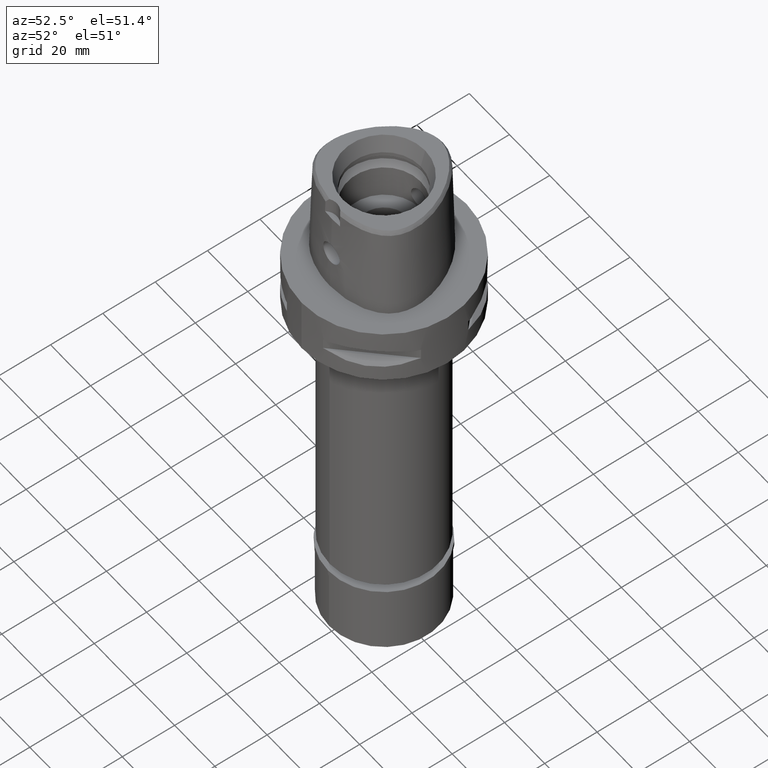
[diagram: clean part render]
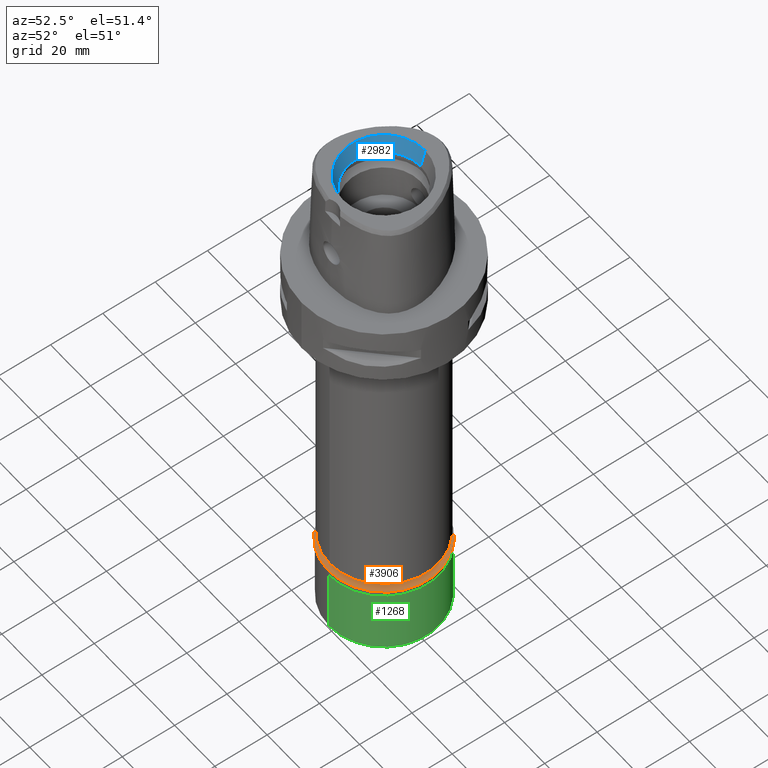
[diagram: same view with three faces highlighted in distinct colors, each labeled with its STEP entity id]
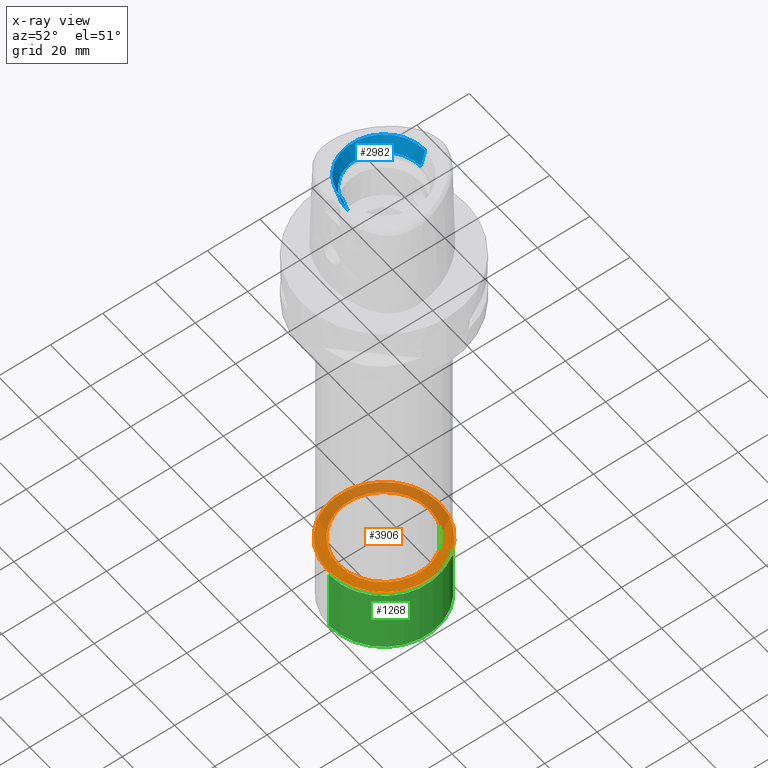
[diagram: x-ray of the same camera — body ghosted, the three highlighted faces saturated]
A machine part, auxiliary view with three faces highlighted in distinct colors.
The next image is the same camera in x-ray (body ghosted, the three faces saturated) — at least one of them is partly hidden behind the body in this view.
Their STEP definitions:

[orange] entity #3906 — the highlighted planar face has unit normal (0, 0, -1).
#179 = CARTESIAN_POINT ( 'NONE',  ( 0.0000000000000000000, 0.0000000000000000000, 0.0000000000000000000 ) ) ;
#228 = EDGE_CURVE ( 'NONE', #1410, #3436, #2731, .T. ) ;
#385 = CIRCLE ( 'NONE', #1606, 17.50000000000000000 ) ;
#474 = FACE_BOUND ( 'NONE', #937, .T. ) ;
#778 = CARTESIAN_POINT ( 'NONE',  ( 0.0000000000000000000, -17.50000000000000000, 0.0000000000000000000 ) ) ;
#828 = CARTESIAN_POINT ( 'NONE',  ( 0.0000000000000000000, -21.35000000000000142, 0.0000000000000000000 ) ) ;
#915 = EDGE_CURVE ( 'NONE', #3436, #1410, #1615, .T. ) ;
#937 = EDGE_LOOP ( 'NONE', ( #4350, #4235 ) ) ;
#1410 = VERTEX_POINT ( 'NONE', #828 ) ;
#1606 = AXIS2_PLACEMENT_3D ( 'NONE', #179, #3928, #3952 ) ;
#1615 = CIRCLE ( 'NONE', #4714, 21.35000000000000142 ) ;
#1698 = AXIS2_PLACEMENT_3D ( 'NONE', #1753, #3964, #3622 ) ;
#1753 = CARTESIAN_POINT ( 'NONE',  ( 0.0000000000000000000, 0.0000000000000000000, 0.0000000000000000000 ) ) ;
#1831 = CARTESIAN_POINT ( 'NONE',  ( 0.0000000000000000000, 21.35000000000000142, 0.0000000000000000000 ) ) ;
#2068 = ORIENTED_EDGE ( 'NONE', *, *, #228, .F. ) ;
#2073 = CIRCLE ( 'NONE', #4862, 17.50000000000000000 ) ;
#2098 = DIRECTION ( 'NONE',  ( 0.0000000000000000000, -1.000000000000000000, 0.0000000000000000000 ) ) ;
#2204 = EDGE_LOOP ( 'NONE', ( #3587, #2068 ) ) ;
#2220 = DIRECTION ( 'NONE',  ( 0.0000000000000000000, 0.0000000000000000000, -1.000000000000000000 ) ) ;
#2337 = EDGE_CURVE ( 'NONE', #4256, #2878, #2073, .T. ) ;
#2731 = CIRCLE ( 'NONE', #1698, 21.35000000000000142 ) ;
#2878 = VERTEX_POINT ( 'NONE', #778 ) ;
#2945 = CARTESIAN_POINT ( 'NONE',  ( 0.0000000000000000000, 0.0000000000000000000, 0.0000000000000000000 ) ) ;
#3079 = CARTESIAN_POINT ( 'NONE',  ( 0.0000000000000000000, 0.0000000000000000000, 0.0000000000000000000 ) ) ;
#3413 = DIRECTION ( 'NONE',  ( 0.0000000000000000000, 1.000000000000000000, 0.0000000000000000000 ) ) ;
#3436 = VERTEX_POINT ( 'NONE', #1831 ) ;
#3516 = CARTESIAN_POINT ( 'NONE',  ( 0.0000000000000000000, 0.0000000000000000000, 0.0000000000000000000 ) ) ;
#3587 = ORIENTED_EDGE ( 'NONE', *, *, #915, .F. ) ;
#3622 = DIRECTION ( 'NONE',  ( 0.0000000000000000000, -1.000000000000000000, 0.0000000000000000000 ) ) ;
#3699 = DIRECTION ( 'NONE',  ( 0.0000000000000000000, 1.000000000000000000, 0.0000000000000000000 ) ) ;
#3906 = ADVANCED_FACE ( 'NONE', ( #4016, #474 ), #4684, .F. ) ;
#3928 = DIRECTION ( 'NONE',  ( 0.0000000000000000000, 0.0000000000000000000, 1.000000000000000000 ) ) ;
#3952 = DIRECTION ( 'NONE',  ( 0.0000000000000000000, -1.000000000000000000, 0.0000000000000000000 ) ) ;
#3964 = DIRECTION ( 'NONE',  ( 0.0000000000000000000, 0.0000000000000000000, -1.000000000000000000 ) ) ;
#4016 = FACE_OUTER_BOUND ( 'NONE', #2204, .T. ) ;
#4120 = DIRECTION ( 'NONE',  ( 0.0000000000000000000, 0.0000000000000000000, 1.000000000000000000 ) ) ;
#4235 = ORIENTED_EDGE ( 'NONE', *, *, #4730, .F. ) ;
#4256 = VERTEX_POINT ( 'NONE', #4297 ) ;
#4297 = CARTESIAN_POINT ( 'NONE',  ( 0.0000000000000000000, 17.50000000000000000, 0.0000000000000000000 ) ) ;
#4301 = AXIS2_PLACEMENT_3D ( 'NONE', #3516, #4392, #2098 ) ;
#4350 = ORIENTED_EDGE ( 'NONE', *, *, #2337, .F. ) ;
#4392 = DIRECTION ( 'NONE',  ( 0.0000000000000000000, 0.0000000000000000000, -1.000000000000000000 ) ) ;
#4684 = PLANE ( 'NONE',  #4301 ) ;
#4714 = AXIS2_PLACEMENT_3D ( 'NONE', #2945, #2220, #3699 ) ;
#4730 = EDGE_CURVE ( 'NONE', #2878, #4256, #385, .T. ) ;
#4862 = AXIS2_PLACEMENT_3D ( 'NONE', #3079, #4120, #3413 ) ;

[blue] entity #2982 — the highlighted conical surface has half-angle 15 deg.
#206 = CARTESIAN_POINT ( 'NONE',  ( 0.0000000000000000000, 14.00000000000000000, 31.60000000000000142 ) ) ;
#325 = ORIENTED_EDGE ( 'NONE', *, *, #3714, .T. ) ;
#424 = VERTEX_POINT ( 'NONE', #4192 ) ;
#797 = CIRCLE ( 'NONE', #3111, 14.00000000000000000 ) ;
#925 = VERTEX_POINT ( 'NONE', #3261 ) ;
#1020 = DIRECTION ( 'NONE',  ( 0.0000000000000000000, 0.0000000000000000000, 1.000000000000000000 ) ) ;
#1156 = CARTESIAN_POINT ( 'NONE',  ( 0.0000000000000000000, 0.0000000000000000000, 38.00000000000000000 ) ) ;
#1211 = FACE_OUTER_BOUND ( 'NONE', #2467, .T. ) ;
#1309 = DIRECTION ( 'NONE',  ( 0.0000000000000000000, -0.2588190451025869088, 0.9659258262890505486 ) ) ;
#1424 = AXIS2_PLACEMENT_3D ( 'NONE', #1156, #1528, #3432 ) ;
#1528 = DIRECTION ( 'NONE',  ( 0.0000000000000000000, 0.0000000000000000000, 1.000000000000000000 ) ) ;
#1681 = CARTESIAN_POINT ( 'NONE',  ( 0.0000000000000000000, -14.00000000000000000, 31.60000000000000142 ) ) ;
#1692 = VERTEX_POINT ( 'NONE', #1858 ) ;
#1792 = EDGE_CURVE ( 'NONE', #424, #4429, #4347, .T. ) ;
#1858 = CARTESIAN_POINT ( 'NONE',  ( 0.0000000000000000000, 14.00000000000000000, 31.60000000000000142 ) ) ;
#2063 = AXIS2_PLACEMENT_3D ( 'NONE', #3922, #4584, #4649 ) ;
#2081 = EDGE_CURVE ( 'NONE', #1692, #925, #4051, .T. ) ;
#2467 = EDGE_LOOP ( 'NONE', ( #3238, #3990, #2626, #325 ) ) ;
#2626 = ORIENTED_EDGE ( 'NONE', *, *, #2081, .T. ) ;
#2927 = DIRECTION ( 'NONE',  ( 0.0000000000000000000, 0.2588190451025869088, 0.9659258262890505486 ) ) ;
#2982 = ADVANCED_FACE ( 'NONE', ( #1211 ), #4693, .F. ) ;
#3111 = AXIS2_PLACEMENT_3D ( 'NONE', #4433, #1020, #4162 ) ;
#3184 = VECTOR ( 'NONE', #2927, 1000.000000000000000 ) ;
#3238 = ORIENTED_EDGE ( 'NONE', *, *, #1792, .F. ) ;
#3261 = CARTESIAN_POINT ( 'NONE',  ( 0.0000000000000000000, 15.71487483155999776, 38.00000000000000000 ) ) ;
#3432 = DIRECTION ( 'NONE',  ( 0.0000000000000000000, 1.000000000000000000, 0.0000000000000000000 ) ) ;
#3502 = CIRCLE ( 'NONE', #1424, 15.71487483155999776 ) ;
#3714 = EDGE_CURVE ( 'NONE', #925, #4429, #3502, .T. ) ;
#3922 = CARTESIAN_POINT ( 'NONE',  ( 0.0000000000000000000, 0.0000000000000000000, 34.79999999999999716 ) ) ;
#3990 = ORIENTED_EDGE ( 'NONE', *, *, #4925, .F. ) ;
#4051 = LINE ( 'NONE', #206, #3184 ) ;
#4162 = DIRECTION ( 'NONE',  ( 0.0000000000000000000, 1.000000000000000000, 0.0000000000000000000 ) ) ;
#4192 = CARTESIAN_POINT ( 'NONE',  ( 0.0000000000000000000, -14.00000000000000000, 31.60000000000000142 ) ) ;
#4347 = LINE ( 'NONE', #1681, #4771 ) ;
#4429 = VERTEX_POINT ( 'NONE', #4573 ) ;
#4433 = CARTESIAN_POINT ( 'NONE',  ( 0.0000000000000000000, 0.0000000000000000000, 31.60000000000000142 ) ) ;
#4573 = CARTESIAN_POINT ( 'NONE',  ( 0.0000000000000000000, -15.71487483155999776, 38.00000000000000000 ) ) ;
#4584 = DIRECTION ( 'NONE',  ( 0.0000000000000000000, 0.0000000000000000000, 1.000000000000000000 ) ) ;
#4649 = DIRECTION ( 'NONE',  ( 0.0000000000000000000, 1.000000000000000000, 0.0000000000000000000 ) ) ;
#4693 = CONICAL_SURFACE ( 'NONE', #2063, 14.85743741577999977, 0.2617993877991000029 ) ;
#4771 = VECTOR ( 'NONE', #1309, 1000.000000000000000 ) ;
#4925 = EDGE_CURVE ( 'NONE', #1692, #424, #797, .T. ) ;

[green] entity #1268 — the highlighted cylindrical surface (partial cylindrical patch) has radius 21 mm, axis along (0, 0, -1).
#81 = ORIENTED_EDGE ( 'NONE', *, *, #3009, .T. ) ;
#91 = EDGE_CURVE ( 'NONE', #2959, #4785, #3297, .T. ) ;
#287 = CIRCLE ( 'NONE', #4853, 21.00000000000000000 ) ;
#782 = VECTOR ( 'NONE', #1363, 1000.000000000000000 ) ;
#1140 = DIRECTION ( 'NONE',  ( 0.0000000000000000000, 0.0000000000000000000, -1.000000000000000000 ) ) ;
#1268 = ADVANCED_FACE ( 'NONE', ( #1890 ), #4560, .T. ) ;
#1363 = DIRECTION ( 'NONE',  ( 0.0000000000000000000, 0.0000000000000000000, -1.000000000000000000 ) ) ;
#1743 = CARTESIAN_POINT ( 'NONE',  ( 0.0000000000000000000, 21.00000000000000000, -2.299999999999999822 ) ) ;
#1807 = DIRECTION ( 'NONE',  ( 0.0000000000000000000, 0.0000000000000000000, -1.000000000000000000 ) ) ;
#1890 = FACE_OUTER_BOUND ( 'NONE', #3134, .T. ) ;
#2010 = CARTESIAN_POINT ( 'NONE',  ( 0.0000000000000000000, -21.00000000000000000, -2.299999999999999822 ) ) ;
#2038 = CARTESIAN_POINT ( 'NONE',  ( 0.0000000000000000000, 21.00000000000000000, -2.299999999999999822 ) ) ;
#2121 = ORIENTED_EDGE ( 'NONE', *, *, #3813, .T. ) ;
#2309 = CARTESIAN_POINT ( 'NONE',  ( 0.0000000000000000000, 0.0000000000000000000, -27.09999999999999787 ) ) ;
#2411 = VECTOR ( 'NONE', #1807, 1000.000000000000000 ) ;
#2544 = AXIS2_PLACEMENT_3D ( 'NONE', #2647, #3863, #3054 ) ;
#2647 = CARTESIAN_POINT ( 'NONE',  ( 0.0000000000000000000, 0.0000000000000000000, -2.299999999999999822 ) ) ;
#2657 = DIRECTION ( 'NONE',  ( 0.0000000000000000000, -1.000000000000000000, 0.0000000000000000000 ) ) ;
#2686 = DIRECTION ( 'NONE',  ( 0.0000000000000000000, -1.000000000000000000, 0.0000000000000000000 ) ) ;
#2760 = EDGE_CURVE ( 'NONE', #4794, #3444, #3638, .T. ) ;
#2959 = VERTEX_POINT ( 'NONE', #2010 ) ;
#3009 = EDGE_CURVE ( 'NONE', #4785, #3444, #287, .T. ) ;
#3037 = CARTESIAN_POINT ( 'NONE',  ( 0.0000000000000000000, 0.0000000000000000000, 0.0000000000000000000 ) ) ;
#3054 = DIRECTION ( 'NONE',  ( 0.0000000000000000000, 1.000000000000000000, 0.0000000000000000000 ) ) ;
#3134 = EDGE_LOOP ( 'NONE', ( #2121, #4029, #81, #3765 ) ) ;
#3157 = DIRECTION ( 'NONE',  ( 0.0000000000000000000, 0.0000000000000000000, 1.000000000000000000 ) ) ;
#3283 = AXIS2_PLACEMENT_3D ( 'NONE', #3037, #1140, #2657 ) ;
#3297 = LINE ( 'NONE', #4820, #2411 ) ;
#3444 = VERTEX_POINT ( 'NONE', #4821 ) ;
#3638 = LINE ( 'NONE', #2038, #782 ) ;
#3666 = CIRCLE ( 'NONE', #2544, 21.00000000000000000 ) ;
#3765 = ORIENTED_EDGE ( 'NONE', *, *, #2760, .F. ) ;
#3813 = EDGE_CURVE ( 'NONE', #4794, #2959, #3666, .T. ) ;
#3863 = DIRECTION ( 'NONE',  ( 0.0000000000000000000, 0.0000000000000000000, -1.000000000000000000 ) ) ;
#4029 = ORIENTED_EDGE ( 'NONE', *, *, #91, .T. ) ;
#4033 = CARTESIAN_POINT ( 'NONE',  ( 0.0000000000000000000, -21.00000000000000000, -27.09999999999999787 ) ) ;
#4560 = CYLINDRICAL_SURFACE ( 'NONE', #3283, 21.00000000000000000 ) ;
#4785 = VERTEX_POINT ( 'NONE', #4033 ) ;
#4794 = VERTEX_POINT ( 'NONE', #1743 ) ;
#4820 = CARTESIAN_POINT ( 'NONE',  ( 0.0000000000000000000, -21.00000000000000000, -2.299999999999999822 ) ) ;
#4821 = CARTESIAN_POINT ( 'NONE',  ( 0.0000000000000000000, 21.00000000000000000, -27.09999999999999787 ) ) ;
#4853 = AXIS2_PLACEMENT_3D ( 'NONE', #2309, #3157, #2686 ) ;